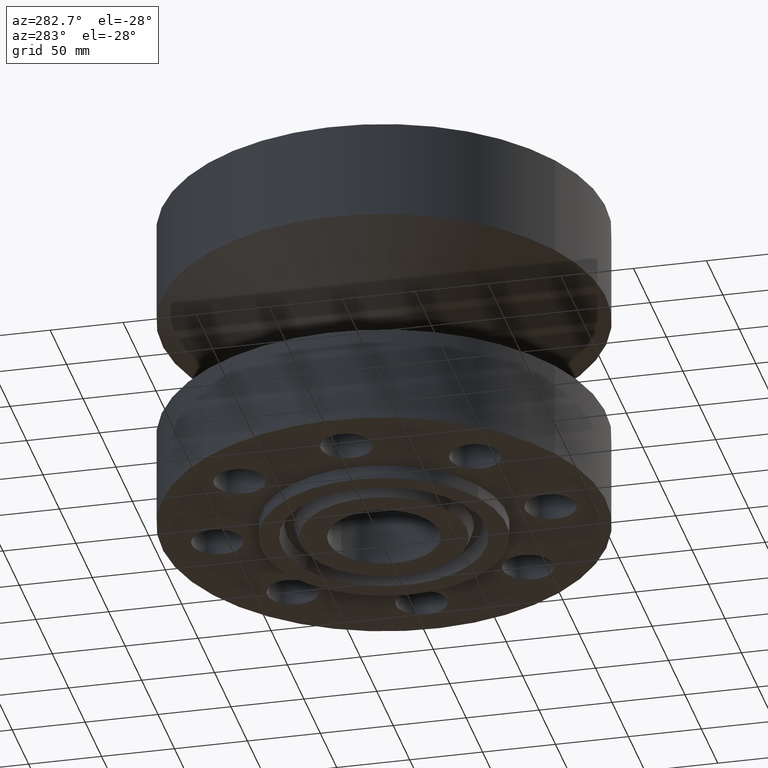
[diagram: clean part render]
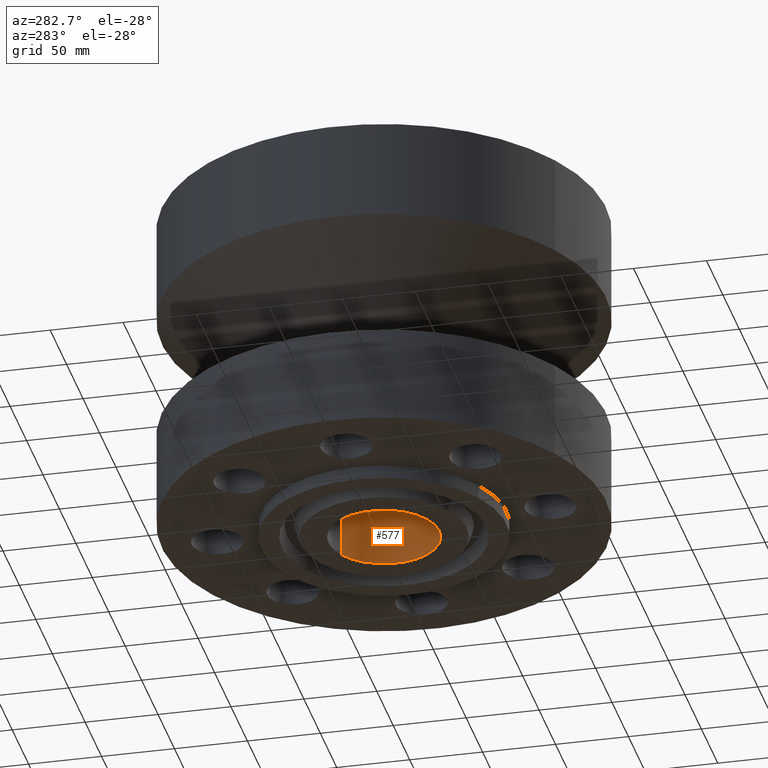
[diagram: same view with one face highlighted and labeled with its STEP entity id]
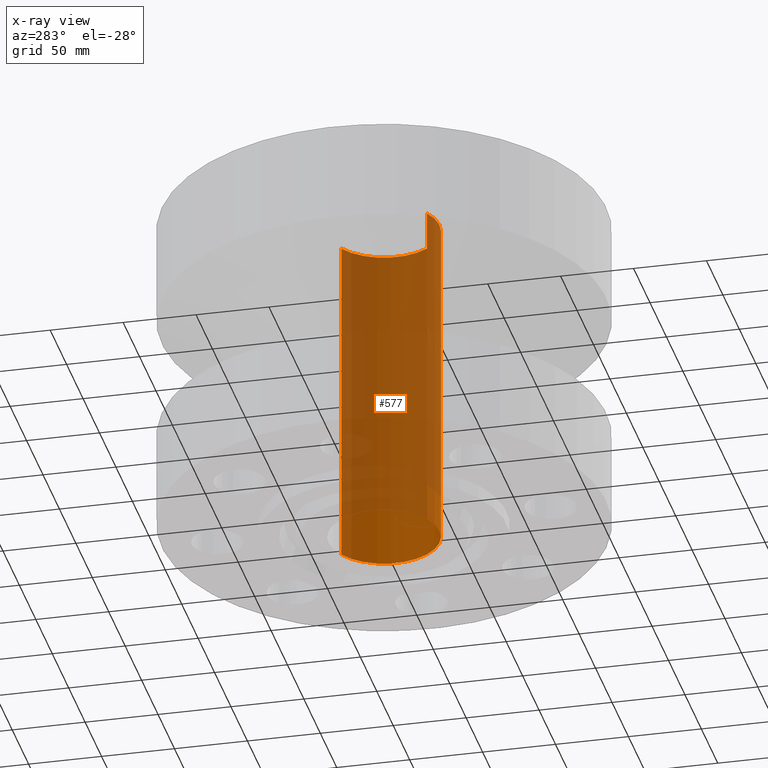
[diagram: x-ray of the same camera — body ghosted, the highlighted face saturated]
A machine part, auxiliary view. The second image highlights one B-rep face of the part: STEP entity #577.
The next image is the same camera in x-ray: the body ghosted, the highlighted face saturated — about 84% of this face is hidden behind the body in this view.
In plain terms, the highlighted cylindrical surface (partial cylindrical patch) has radius 38.1 mm, axis along (0, 0, -1).
Its self-contained STEP definition (entity closure, byte-faithful):
#539=AXIS2_PLACEMENT_3D('Circle Axis2P3D',#537,#538,$) ;
#550=AXIS2_PLACEMENT_3D('Cylinder Axis2P3D',#547,#548,#549) ;
#561=AXIS2_PLACEMENT_3D('Circle Axis2P3D',#559,#560,$) ;
#532=CARTESIAN_POINT('Vertex',(-0.719138307909,-1.31637384284,8.75000000004)) ;
#534=CARTESIAN_POINT('Vertex',(0.719138307909,1.31637384284,8.75000000004)) ;
#537=CARTESIAN_POINT('Axis2P3D Location',(0.,0.,8.75000000003)) ;
#547=CARTESIAN_POINT('Axis2P3D Location',(0.,0.,4.18750000002)) ;
#552=CARTESIAN_POINT('Line Origine',(0.719138307909,1.31637384284,4.18750000002)) ;
#556=CARTESIAN_POINT('Vertex',(0.719138307909,1.31637384284,-0.375000000001)) ;
#559=CARTESIAN_POINT('Axis2P3D Location',(0.,0.,-0.375000000002)) ;
#563=CARTESIAN_POINT('Vertex',(-0.719138307909,-1.31637384284,-0.375000000001)) ;
#566=CARTESIAN_POINT('Line Origine',(-0.719138307909,-1.31637384284,4.18750000002)) ;
#538=DIRECTION('Axis2P3D Direction',(0.,0.,-0.0393700787402)) ;
#548=DIRECTION('Axis2P3D Direction',(0.,0.,-0.0393700787402)) ;
#549=DIRECTION('Axis2P3D XDirection',(-0.0188750212049,-0.0345504945626,0.)) ;
#553=DIRECTION('Vector Direction',(0.,0.,-0.0393700787402)) ;
#560=DIRECTION('Axis2P3D Direction',(0.,0.,-0.0393700787402)) ;
#567=DIRECTION('Vector Direction',(0.,0.,-0.0393700787402)) ;
#554=VECTOR('Line Direction',#553,0.0393700787402) ;
#568=VECTOR('Line Direction',#567,0.0393700787402) ;
#572=ORIENTED_EDGE('',*,*,#541,.F.) ;
#573=ORIENTED_EDGE('',*,*,#558,.T.) ;
#574=ORIENTED_EDGE('',*,*,#565,.T.) ;
#575=ORIENTED_EDGE('',*,*,#570,.F.) ;
#577=ADVANCED_FACE('PartBody',(#576),#551,.F.) ;
#540=CIRCLE('generated circle',#539,1.50000000001) ;
#562=CIRCLE('generated circle',#561,1.50000000001) ;
#551=CYLINDRICAL_SURFACE('generated cylinder',#550,1.50000000001) ;
#541=EDGE_CURVE('',#535,#533,#540,.T.) ;
#558=EDGE_CURVE('',#535,#557,#555,.T.) ;
#565=EDGE_CURVE('',#557,#564,#562,.T.) ;
#570=EDGE_CURVE('',#533,#564,#569,.T.) ;
#571=EDGE_LOOP('',(#572,#573,#574,#575)) ;
#576=FACE_OUTER_BOUND('',#571,.T.) ;
#555=LINE('Line',#552,#554) ;
#569=LINE('Line',#566,#568) ;
#533=VERTEX_POINT('',#532) ;
#535=VERTEX_POINT('',#534) ;
#557=VERTEX_POINT('',#556) ;
#564=VERTEX_POINT('',#563) ;